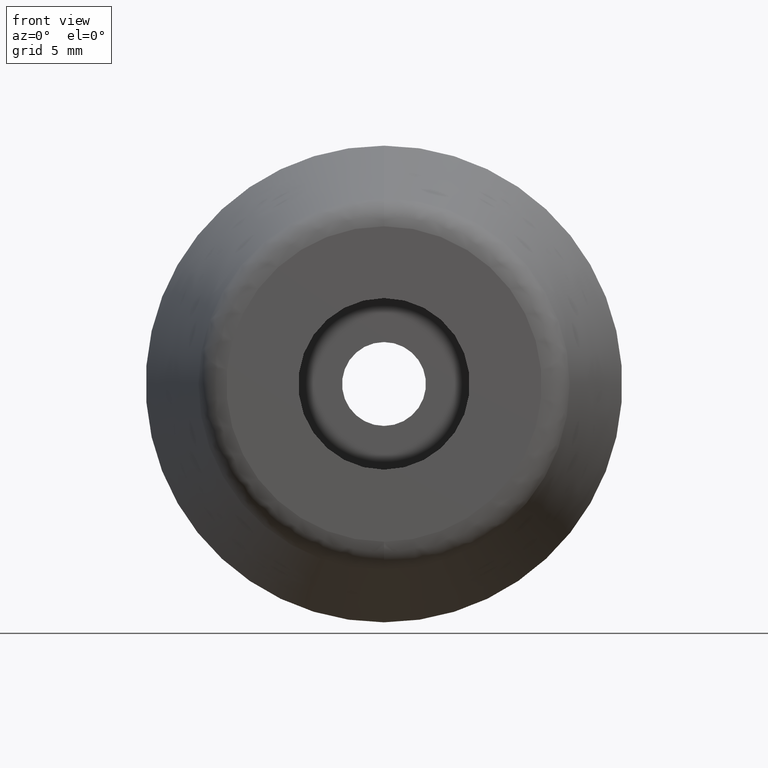
[diagram: clean part render]
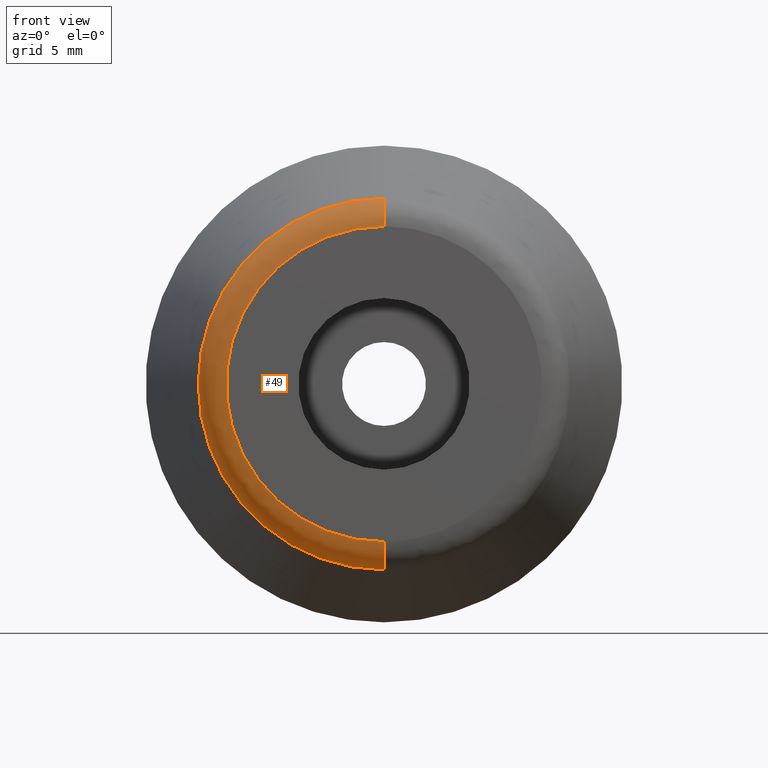
[diagram: same view with one face highlighted and labeled with its STEP entity id]
A machine part, front view. The second image highlights one B-rep face of the part: STEP entity #49.
In plain terms, the highlighted face is a freeform B-spline surface patch.
Its self-contained STEP definition (entity closure, byte-faithful):
#49=ADVANCED_FACE('',(#145),#144,.T.);
#144=( BOUNDED_SURFACE() B_SPLINE_SURFACE( 2,2,((#224,#225,#226,#227,#228),(#229,#230,#231,#232,#233),(#234,#235,#236,#237,#238),(#239,#240,#241,#242,#243),(#244,#245,#246,#247,#248)), .UNSPECIFIED.,.F.,.F.,.F.) B_SPLINE_SURFACE_WITH_KNOTS((3,2,3),(3,2,3),(0.00000000000E+00,5.00000000000E-01,1.00000000000E+00),(0.00000000000E+00,5.00000000000E-01,1.00000000000E+00), .UNSPECIFIED. ) GEOMETRIC_REPRESENTATION_ITEM() RATIONAL_B_SPLINE_SURFACE(((1.00000000000E+00,7.73342141338E-01,1.00000000000E+00,7.73342141338E-01,1.00000000000E+00),(7.07106781187E-01,5.46835472317E-01,7.07106781187E-01,5.46835472317E-01,7.07106781187E-01),(1.00000000000E+00,7.73342141338E-01,1.00000000000E+00,7.73342141338E-01,1.00000000000E+00),(7.07106781187E-01,5.46835472317E-01,7.07106781187E-01,5.46835472317E-01,7.07106781187E-01),(1.00000000000E+00,7.73342141338E-01,1.00000000000E+00,7.73342141338E-01,1.00000000000E+00))) REPRESENTATION_ITEM('') SURFACE() );
#145=FACE_OUTER_BOUND('',#249,.T.);
#224=CARTESIAN_POINT('',(1.96237724369E-14,-1.37941742027E+01,9.74116515946E+00));
#225=CARTESIAN_POINT('',(1.96533056756E-14,-1.50000000000E+01,9.50000000000E+00));
#226=CARTESIAN_POINT('',(1.98038962358E-14,-1.50000000000E+01,8.27029414592E+00));
#227=CARTESIAN_POINT('',(1.99544867960E-14,-1.50000000000E+01,7.04058829184E+00));
#228=CARTESIAN_POINT('',(1.99840200347E-14,-1.37941742027E+01,6.79942313239E+00));
#229=CARTESIAN_POINT('',(-9.74116515946E+00,-1.37941742027E+01,9.74116515946E+00));
#230=CARTESIAN_POINT('',(-9.50000000000E+00,-1.50000000000E+01,9.50000000000E+00));
#231=CARTESIAN_POINT('',(-8.27029414592E+00,-1.50000000000E+01,8.27029414592E+00));
#232=CARTESIAN_POINT('',(-7.04058829184E+00,-1.50000000000E+01,7.04058829184E+00));
#233=CARTESIAN_POINT('',(-6.79942313239E+00,-1.37941742027E+01,6.79942313239E+00));
#234=CARTESIAN_POINT('',(-9.74116515946E+00,-1.37941742027E+01,-5.96434938166E-16));
#235=CARTESIAN_POINT('',(-9.50000000000E+00,-1.50000000000E+01,-5.81668806536E-16));
#236=CARTESIAN_POINT('',(-8.27029414592E+00,-1.50000000000E+01,-5.06376013217E-16));
#237=CARTESIAN_POINT('',(-7.04058829184E+00,-1.50000000000E+01,-4.31083219898E-16));
#238=CARTESIAN_POINT('',(-6.79942313239E+00,-1.37941742027E+01,-4.16317088268E-16));
#239=CARTESIAN_POINT('',(-9.74116515946E+00,-1.37941742027E+01,-9.74116515946E+00));
#240=CARTESIAN_POINT('',(-9.50000000000E+00,-1.50000000000E+01,-9.50000000000E+00));
#241=CARTESIAN_POINT('',(-8.27029414592E+00,-1.50000000000E+01,-8.27029414592E+00));
#242=CARTESIAN_POINT('',(-7.04058829184E+00,-1.50000000000E+01,-7.04058829184E+00));
#243=CARTESIAN_POINT('',(-6.79942313239E+00,-1.37941742027E+01,-6.79942313239E+00));
#244=CARTESIAN_POINT('',(2.08166423133E-14,-1.37941742027E+01,-9.74116515946E+00));
#245=CARTESIAN_POINT('',(2.08166432887E-14,-1.50000000000E+01,-9.50000000000E+00));
#246=CARTESIAN_POINT('',(2.08166482622E-14,-1.50000000000E+01,-8.27029414592E+00));
#247=CARTESIAN_POINT('',(2.08166532358E-14,-1.50000000000E+01,-7.04058829184E+00));
#248=CARTESIAN_POINT('',(2.08166542112E-14,-1.37941742027E+01,-6.79942313239E+00));
#249=EDGE_LOOP('',(#312,#313,#314,#315));
#312=ORIENTED_EDGE('',*,*,#329,.F.);
#313=ORIENTED_EDGE('',*,*,#340,.F.);
#314=ORIENTED_EDGE('',*,*,#333,.T.);
#315=ORIENTED_EDGE('',*,*,#341,.T.);
#329=EDGE_CURVE('',#399,#398,#406,.T.);
#333=EDGE_CURVE('',#433,#426,#434,.T.);
#340=EDGE_CURVE('',#433,#399,#476,.T.);
#341=EDGE_CURVE('',#426,#398,#482,.T.);
#398=VERTEX_POINT('',#528);
#399=VERTEX_POINT('',#529);
#406=CIRCLE('',#537,8.27029414592E+00);
#426=VERTEX_POINT('',#548);
#433=VERTEX_POINT('',#551);
#434=CIRCLE('',#555,9.74116515946E+00);
#476=(BOUNDED_CURVE() B_SPLINE_CURVE(2,(#570,#571,#572),.UNSPECIFIED.,.F.,.F.) B_SPLINE_CURVE_WITH_KNOTS((3,3),(0.00000000000E+00,5.00000000000E-01),.UNSPECIFIED.) CURVE() GEOMETRIC_REPRESENTATION_ITEM() RATIONAL_B_SPLINE_CURVE((1.00000000000E+00,7.73342141338E-01,1.00000000000E+00)) REPRESENTATION_ITEM('') );
#482=(BOUNDED_CURVE() B_SPLINE_CURVE(3,(#573,#574,#575,#576,#577),.UNSPECIFIED.,.F.,.F.) B_SPLINE_CURVE_WITH_KNOTS((4,1,4),(0.00000000000E+00,2.50000001380E-01,5.00000002472E-01),.UNSPECIFIED.) CURVE() GEOMETRIC_REPRESENTATION_ITEM() RATIONAL_B_SPLINE_CURVE((1.00000000000E+00,1.00000000000E+00,1.00000000000E+00,1.00000000000E+00,1.00000000000E+00)) REPRESENTATION_ITEM('') );
#528=CARTESIAN_POINT('',(2.13162820728E-14,-1.50000000000E+01,-8.27029414592E+00));
#529=CARTESIAN_POINT('',(2.19084010193E-14,-1.50000000000E+01,8.27029414592E+00));
#534=CARTESIAN_POINT('',(2.13162820728E-14,-1.50000000000E+01,0.00000000000E+00));
#535=DIRECTION('',(0.00000000000E+00,-1.00000000000E+00,-0.00000000000E+00));
#536=DIRECTION('',(-1.22460635382E-16,0.00000000000E+00,-1.00000000000E+00));
#537=AXIS2_PLACEMENT_3D('',#534,#535,#536);
#548=CARTESIAN_POINT('',(2.13162820728E-14,-1.37941742027E+01,-9.74116515946E+00));
#551=CARTESIAN_POINT('',(2.13162820728E-14,-1.37941742027E+01,9.74116515946E+00));
#552=CARTESIAN_POINT('',(2.13162820728E-14,-1.37941742027E+01,0.00000000000E+00));
#553=DIRECTION('',(0.00000000000E+00,-1.00000000000E+00,-0.00000000000E+00));
#554=DIRECTION('',(-1.22460635382E-16,0.00000000000E+00,-1.00000000000E+00));
#555=AXIS2_PLACEMENT_3D('',#552,#553,#554);
#570=CARTESIAN_POINT('',(1.96237724369E-14,-1.37941742027E+01,9.74116515946E+00));
#571=CARTESIAN_POINT('',(1.96533056756E-14,-1.50000000000E+01,9.50000000000E+00));
#572=CARTESIAN_POINT('',(1.98038962358E-14,-1.50000000000E+01,8.27029414592E+00));
#573=CARTESIAN_POINT('',(2.25005199657E-14,-1.37941742027E+01,-9.74116515946E+00));
#574=CARTESIAN_POINT('',(2.24182821200E-14,-1.41288346408E+01,-9.67620197289E+00));
#575=CARTESIAN_POINT('',(2.22645514122E-14,-1.47546437756E+01,-9.29885600280E+00));
#576=CARTESIAN_POINT('',(2.22039158767E-14,-1.50019306684E+01,-8.61119602366E+00));
#577=CARTESIAN_POINT('',(2.22044604866E-14,-1.50000000000E+01,-8.27029413652E+00));